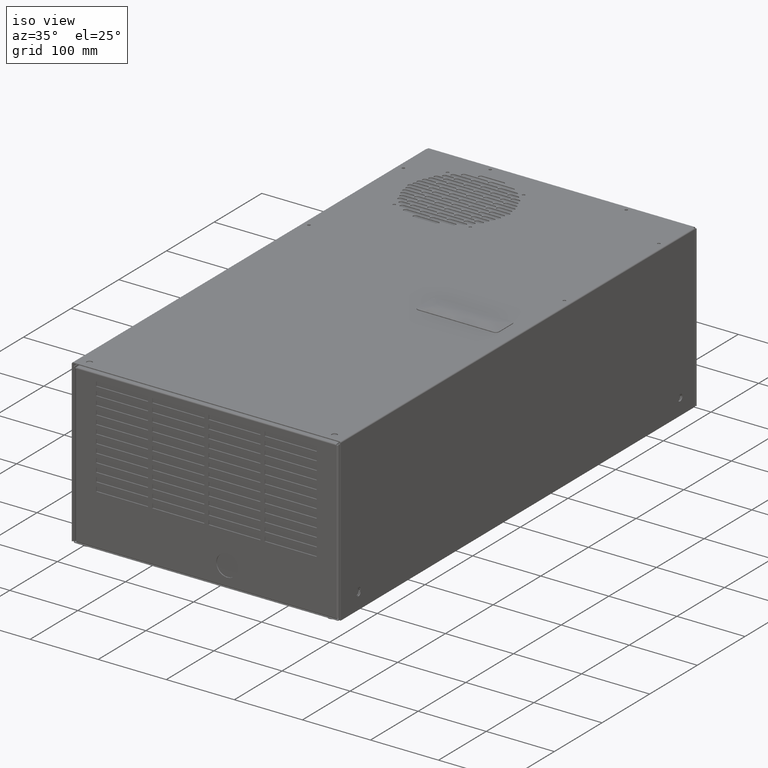
[diagram: clean part render]
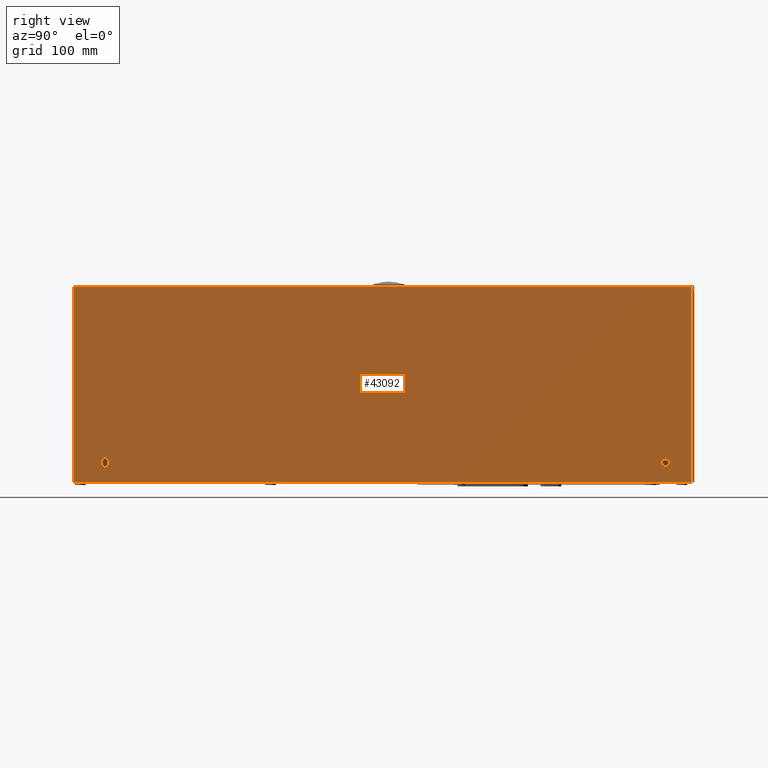
[diagram: tour spotlight — one face highlighted and labeled with its STEP entity id]
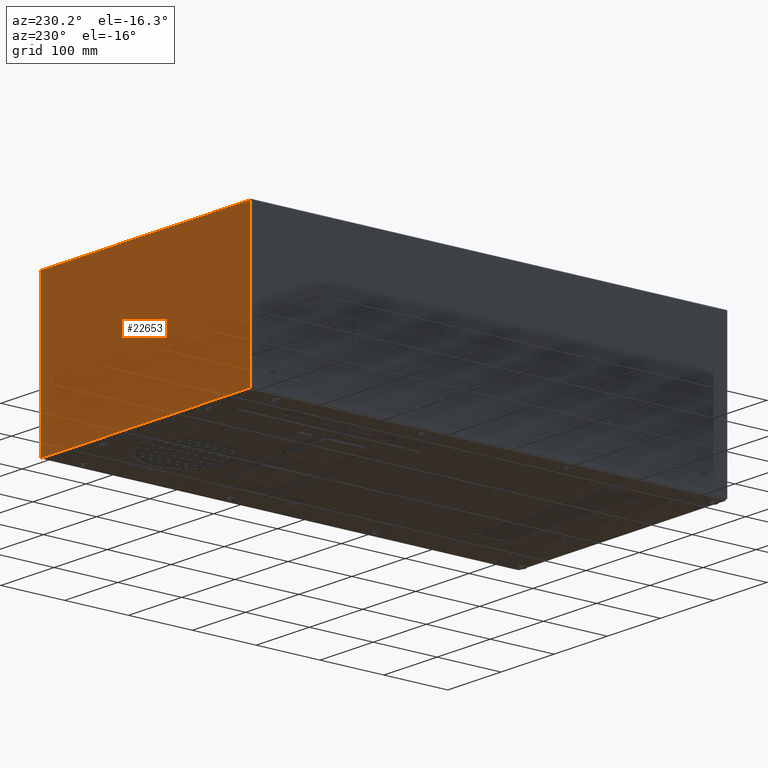
[diagram: tour spotlight — one face highlighted and labeled with its STEP entity id]
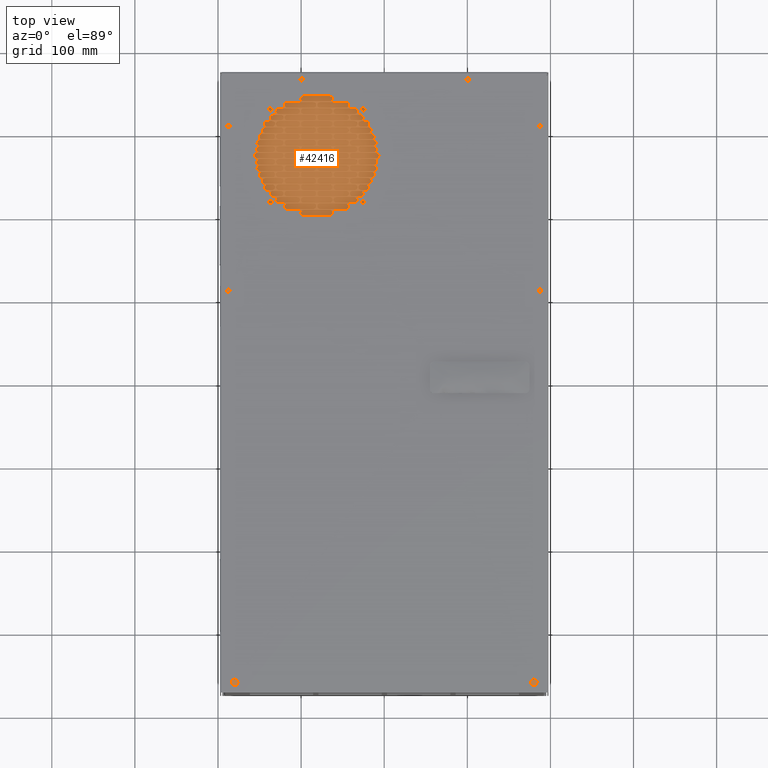
[diagram: tour spotlight — one face highlighted and labeled with its STEP entity id]
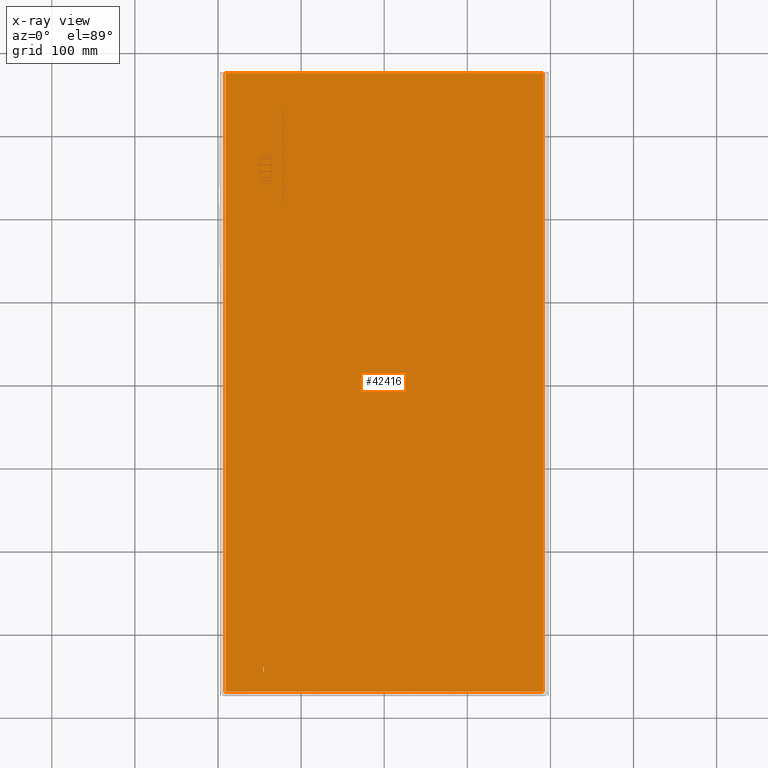
[diagram: x-ray of the same camera — body ghosted, this tour face saturated]
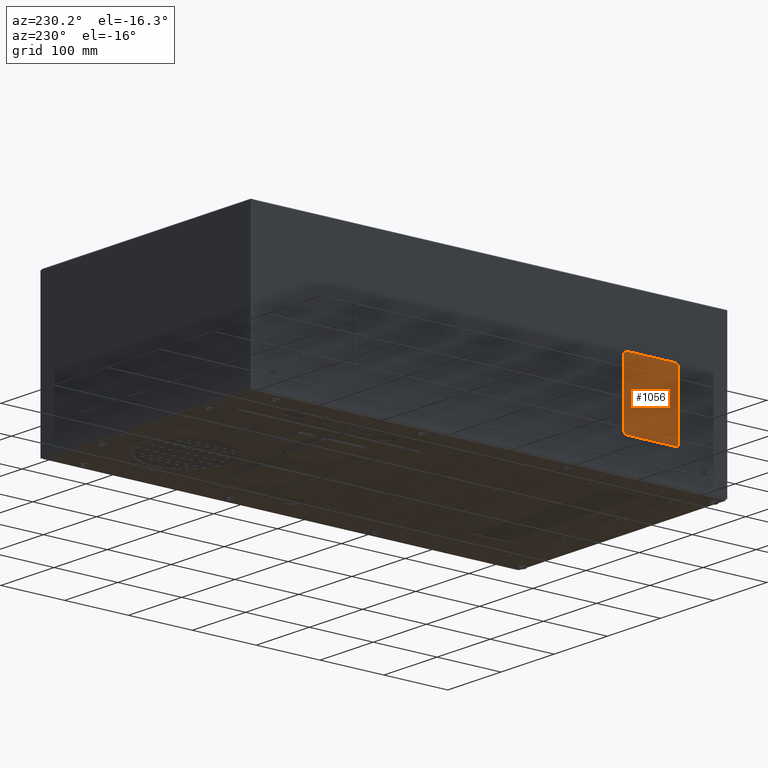
[diagram: tour spotlight — one face highlighted and labeled with its STEP entity id]
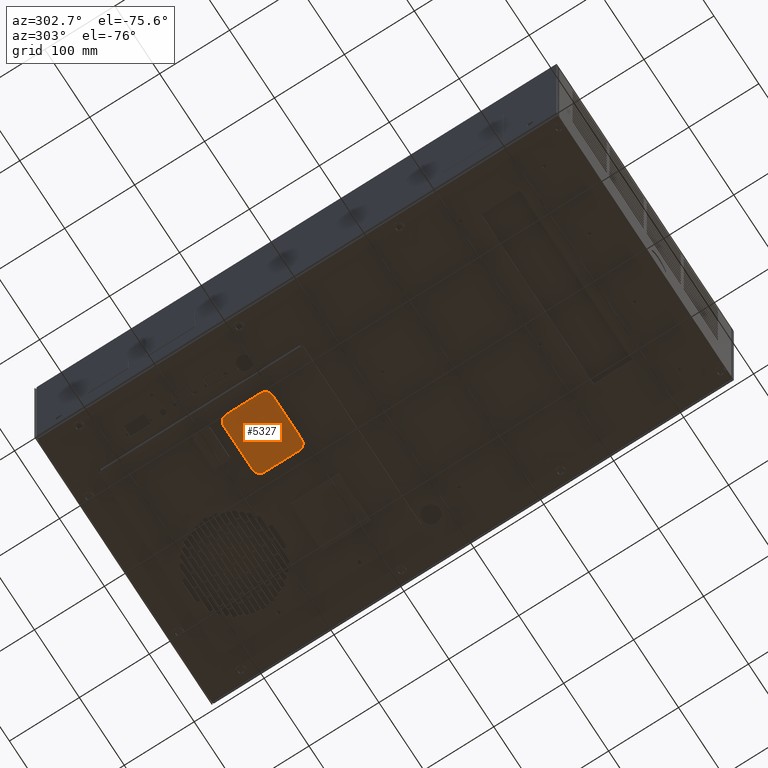
[diagram: tour spotlight — one face highlighted and labeled with its STEP entity id]
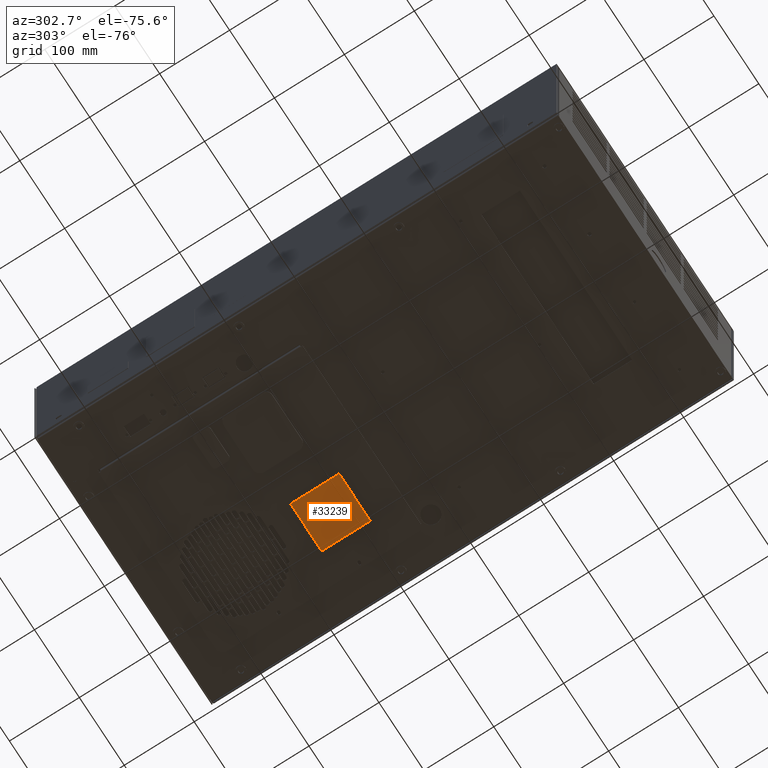
[diagram: tour spotlight — one face highlighted and labeled with its STEP entity id]
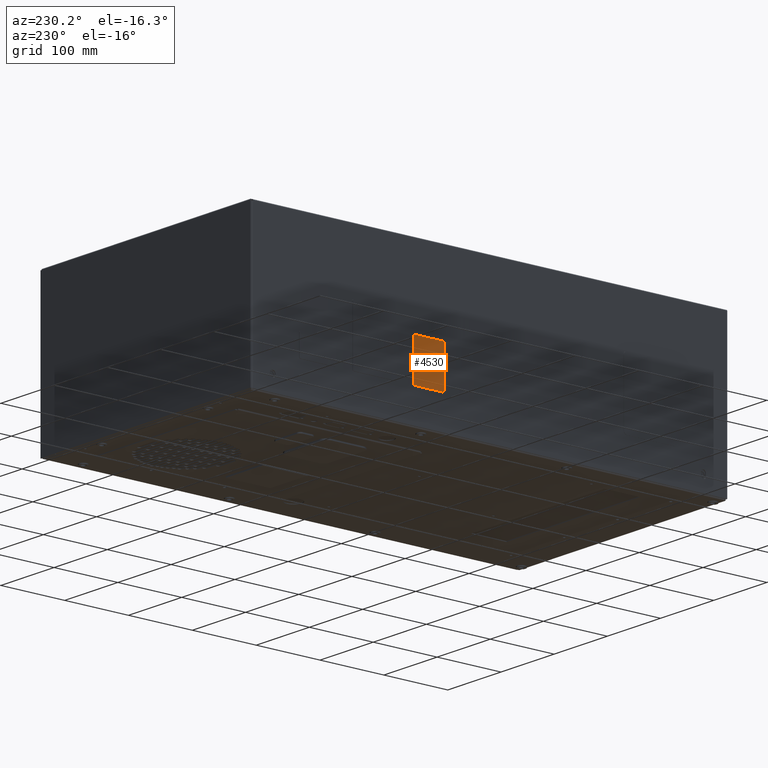
[diagram: tour spotlight — one face highlighted and labeled with its STEP entity id]
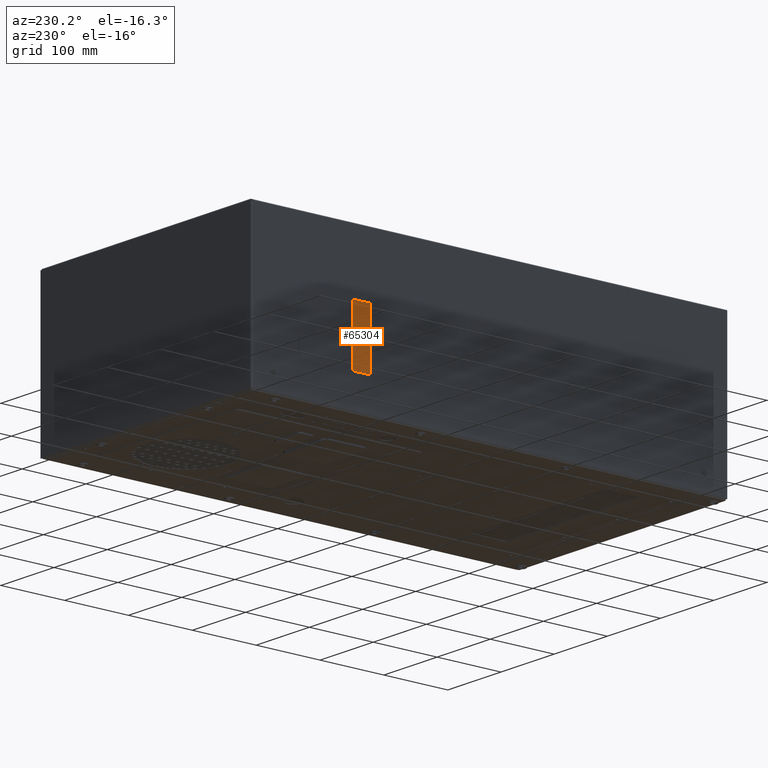
[diagram: tour spotlight — one face highlighted and labeled with its STEP entity id]
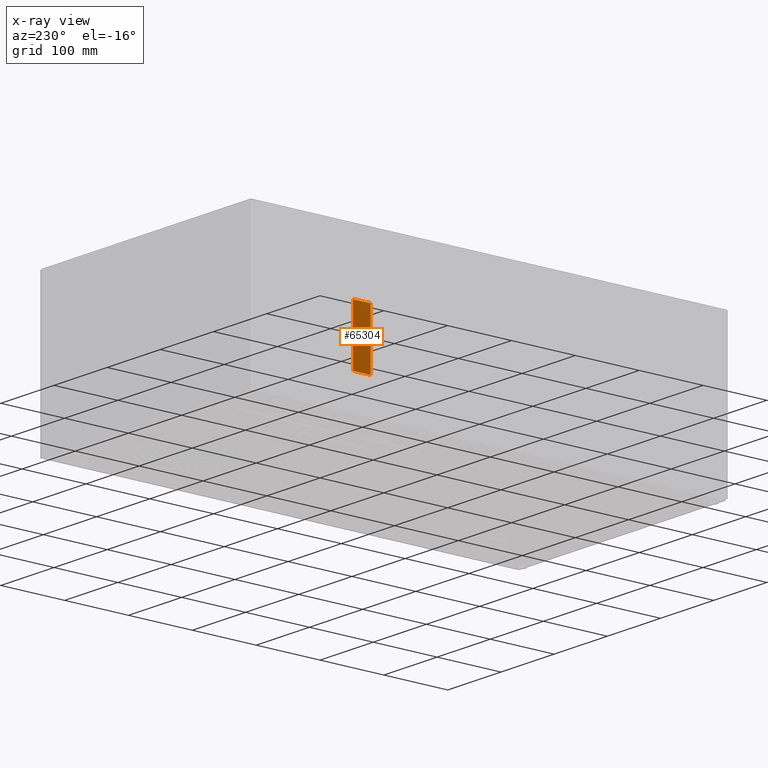
[diagram: x-ray of the same camera — body ghosted, this tour face saturated]
A machine part: a face-by-face anatomy tour. The part has 1943 B-rep faces; the first image is the clean iso view, then the 8 largest visible faces are spotlighted one at a time (largest first), each with its STEP entity span.

Face 1 — right view, entity #43092. In plain terms, the highlighted planar face has unit normal (-1, 0, -0).
Definition (entity closure, byte-faithful):
#1597 = VERTEX_POINT ( 'NONE', #36632 ) ;
#2814 = CARTESIAN_POINT ( 'NONE',  ( 7.775590551181102761, -13.37415485964175232, -3.621748818897834621 ) ) ;
#4029 = ORIENTED_EDGE ( 'NONE', *, *, #32549, .T. ) ;
#4426 = VECTOR ( 'NONE', #25299, 39.37007874015748143 ) ;
#6234 = PLANE ( 'NONE',  #25443 ) ;
#7026 = EDGE_LOOP ( 'NONE', ( #66239, #49072 ) ) ;
#9017 = VERTEX_POINT ( 'NONE', #23670 ) ;
#9450 = DIRECTION ( 'NONE',  ( 0.000000000000000000, -1.400947689058594811E-14, 1.000000000000000000 ) ) ;
#9546 = CARTESIAN_POINT ( 'NONE',  ( 7.775590551181102761, -13.37415485964175232, -3.777748818897838312 ) ) ;
#9908 = CARTESIAN_POINT ( 'NONE',  ( 7.775590551181102761, 14.62058530020065028, 4.624731496063189340 ) ) ;
#10306 = DIRECTION ( 'NONE',  ( -5.824884704224319422E-15, -1.164976940844863884E-14, 1.000000000000000000 ) ) ;
#11043 = CARTESIAN_POINT ( 'NONE',  ( 7.775590551181102761, 14.54373490649982159, 4.624731496063181346 ) ) ;
#11108 = CARTESIAN_POINT ( 'NONE',  ( 7.775590551181102761, 13.33869553642124117, -3.895347244094315098 ) ) ;
#11324 = DIRECTION ( 'NONE',  ( 3.522132179133150239E-15, 1.391066095212824273E-14, -1.000000000000000000 ) ) ;
#11753 = VERTEX_POINT ( 'NONE', #11108 ) ;
#12676 = CIRCLE ( 'NONE', #56945, 0.1560000000000001941 ) ;
#14084 = CARTESIAN_POINT ( 'NONE',  ( 7.775590551181102761, 13.33869553642124117, -3.707748818897464549 ) ) ;
#15644 = DIRECTION ( 'NONE',  ( 0.000000000000000000, 1.000000000000000000, 1.391066095212824273E-14 ) ) ;
#16147 = CIRCLE ( 'NONE', #33419, 0.1560000000000001941 ) ;
#16871 = VERTEX_POINT ( 'NONE', #37798 ) ;
#17612 = ORIENTED_EDGE ( 'NONE', *, *, #22109, .T. ) ;
#18664 = EDGE_CURVE ( 'NONE', #16871, #43604, #46100, .T. ) ;
#18814 = ORIENTED_EDGE ( 'NONE', *, *, #52625, .T. ) ;
#19229 = VECTOR ( 'NONE', #33981, 39.37007874015748143 ) ;
#20272 = DIRECTION ( 'NONE',  ( -1.000000000000000000, 0.000000000000000000, 0.000000000000000000 ) ) ;
#20791 = ORIENTED_EDGE ( 'NONE', *, *, #38910, .T. ) ;
#21551 = VERTEX_POINT ( 'NONE', #2814 ) ;
#21785 = FACE_BOUND ( 'NONE', #41237, .T. ) ;
#22109 = EDGE_CURVE ( 'NONE', #38797, #51019, #22876, .T. ) ;
#22876 = CIRCLE ( 'NONE', #50972, 0.1560000000000001941 ) ;
#23497 = LINE ( 'NONE', #48887, #19229 ) ;
#23670 = CARTESIAN_POINT ( 'NONE',  ( 7.775590551181102761, -13.06215485964175294, -3.621748818897831068 ) ) ;
#23710 = DIRECTION ( 'NONE',  ( -1.000000000000000000, 0.000000000000000000, 0.000000000000000000 ) ) ;
#24412 = EDGE_CURVE ( 'NONE', #11753, #42398, #46257, .T. ) ;
#24971 = LINE ( 'NONE', #45619, #4426 ) ;
#25299 = DIRECTION ( 'NONE',  ( 0.000000000000000000, -9.881593845769429733E-17, -1.000000000000000000 ) ) ;
#25443 = AXIS2_PLACEMENT_3D ( 'NONE', #46837, #56619, #41440 ) ;
#25517 = VERTEX_POINT ( 'NONE', #62198 ) ;
#27724 = ORIENTED_EDGE ( 'NONE', *, *, #18664, .F. ) ;
#27731 = DIRECTION ( 'NONE',  ( -1.000000000000000000, 0.000000000000000000, 0.000000000000000000 ) ) ;
#27786 = CARTESIAN_POINT ( 'NONE',  ( 7.775590551181102761, -13.21815485964177306, -3.621748818897834621 ) ) ;
#32549 = EDGE_CURVE ( 'NONE', #9017, #38797, #24971, .T. ) ;
#32559 = VERTEX_POINT ( 'NONE', #50681 ) ;
#33204 = AXIS2_PLACEMENT_3D ( 'NONE', #57619, #51226, #10306 ) ;
#33263 = CARTESIAN_POINT ( 'NONE',  ( 7.775590551181102761, 13.33869553642124117, -3.520150393700614000 ) ) ;
#33419 = AXIS2_PLACEMENT_3D ( 'NONE', #27786, #23710, #49757 ) ;
#33981 = DIRECTION ( 'NONE',  ( 0.000000000000000000, 1.000000000000000000, 1.391066095212824273E-14 ) ) ;
#34006 = DIRECTION ( 'NONE',  ( 0.000000000000000000, -1.391066095212824273E-14, 1.000000000000000000 ) ) ;
#34126 = DIRECTION ( 'NONE',  ( 0.000000000000000000, -1.400947689058594811E-14, 1.000000000000000000 ) ) ;
#35028 = DIRECTION ( 'NONE',  ( 0.000000000000000000, -1.391066095212824273E-14, 1.000000000000000000 ) ) ;
#36632 = CARTESIAN_POINT ( 'NONE',  ( 7.775590551181102761, 14.54373490649994061, -4.652748818897449290 ) ) ;
#37364 = LINE ( 'NONE', #46547, #63695 ) ;
#37798 = CARTESIAN_POINT ( 'NONE',  ( 7.775590551181102761, -14.69846982027179116, 4.624731496062771896 ) ) ;
#38263 = CARTESIAN_POINT ( 'NONE',  ( 7.775590551181102761, -13.06215485964175294, -3.777748818897830763 ) ) ;
#38797 = VERTEX_POINT ( 'NONE', #38263 ) ;
#38910 = EDGE_CURVE ( 'NONE', #1597, #43604, #65100, .T. ) ;
#39091 = ORIENTED_EDGE ( 'NONE', *, *, #66122, .T. ) ;
#39917 = ORIENTED_EDGE ( 'NONE', *, *, #56763, .T. ) ;
#41237 = EDGE_LOOP ( 'NONE', ( #56454, #39091, #57081, #4029, #17612 ) ) ;
#41440 = DIRECTION ( 'NONE',  ( -3.522132179133150239E-15, 0.000000000000000000, 1.000000000000000000 ) ) ;
#42211 = VECTOR ( 'NONE', #15644, 39.37007874015748143 ) ;
#42398 = VERTEX_POINT ( 'NONE', #33263 ) ;
#43092 = ADVANCED_FACE ( 'NONE', ( #57611, #21785, #57291 ), #6234, .F. ) ;
#43604 = VERTEX_POINT ( 'NONE', #11043 ) ;
#44531 = CARTESIAN_POINT ( 'NONE',  ( 7.775590551181102761, -13.37415485964175232, -3.621748818897834621 ) ) ;
#45210 = DIRECTION ( 'NONE',  ( -1.000000000000000000, 8.102799620570240686E-29, -5.824884704224321000E-15 ) ) ;
#45619 = CARTESIAN_POINT ( 'NONE',  ( 7.775590551181102761, -13.06215485964175294, -3.621748818897831068 ) ) ;
#46100 = LINE ( 'NONE', #9908, #42211 ) ;
#46257 = CIRCLE ( 'NONE', #62436, 0.1875984251968506045 ) ;
#46369 = EDGE_CURVE ( 'NONE', #42398, #11753, #62349, .T. ) ;
#46547 = CARTESIAN_POINT ( 'NONE',  ( 7.775590551181102761, -14.69846982027179116, 4.654731496062771257 ) ) ;
#46837 = CARTESIAN_POINT ( 'NONE',  ( 7.775590551181102761, -14.69846982027179116, 4.654731496062771257 ) ) ;
#47461 = EDGE_LOOP ( 'NONE', ( #20791, #27724, #39917, #18814 ) ) ;
#48320 = VECTOR ( 'NONE', #34006, 39.37007874015748143 ) ;
#48621 = VECTOR ( 'NONE', #35028, 39.37007874015748143 ) ;
#48887 = CARTESIAN_POINT ( 'NONE',  ( 7.775590551181102761, -14.69846982027167392, -4.652748818897850747 ) ) ;
#49072 = ORIENTED_EDGE ( 'NONE', *, *, #24412, .T. ) ;
#49757 = DIRECTION ( 'NONE',  ( 0.000000000000000000, -1.400947689058594811E-14, 1.000000000000000000 ) ) ;
#50601 = DIRECTION ( 'NONE',  ( -5.824884704224319422E-15, -1.164976940844863884E-14, 1.000000000000000000 ) ) ;
#50681 = CARTESIAN_POINT ( 'NONE',  ( 7.775590551181102761, -14.69846982027167392, -4.652748818897850747 ) ) ;
#50972 = AXIS2_PLACEMENT_3D ( 'NONE', #66556, #20272, #9450 ) ;
#51019 = VERTEX_POINT ( 'NONE', #9546 ) ;
#51226 = DIRECTION ( 'NONE',  ( -1.000000000000000000, 8.102799620570240686E-29, -5.824884704224321000E-15 ) ) ;
#52625 = EDGE_CURVE ( 'NONE', #32559, #1597, #23497, .T. ) ;
#54094 = CARTESIAN_POINT ( 'NONE',  ( 7.775590551181102761, -13.21815485964177306, -3.621748818897834621 ) ) ;
#56454 = ORIENTED_EDGE ( 'NONE', *, *, #56679, .T. ) ;
#56619 = DIRECTION ( 'NONE',  ( -1.000000000000000000, 4.899518657250190874E-29, -3.522132179133150239E-15 ) ) ;
#56679 = EDGE_CURVE ( 'NONE', #51019, #21551, #60728, .T. ) ;
#56763 = EDGE_CURVE ( 'NONE', #16871, #32559, #37364, .T. ) ;
#56945 = AXIS2_PLACEMENT_3D ( 'NONE', #54094, #27731, #34126 ) ;
#57081 = ORIENTED_EDGE ( 'NONE', *, *, #60969, .T. ) ;
#57291 = FACE_OUTER_BOUND ( 'NONE', #47461, .T. ) ;
#57611 = FACE_BOUND ( 'NONE', #7026, .T. ) ;
#57619 = CARTESIAN_POINT ( 'NONE',  ( 7.775590551181102761, 13.33869553642124117, -3.707748818897464549 ) ) ;
#60728 = LINE ( 'NONE', #44531, #48621 ) ;
#60969 = EDGE_CURVE ( 'NONE', #25517, #9017, #12676, .T. ) ;
#62198 = CARTESIAN_POINT ( 'NONE',  ( 7.775590551181102761, -13.21815485964177306, -3.465748818897834482 ) ) ;
#62349 = CIRCLE ( 'NONE', #33204, 0.1875984251968506045 ) ;
#62436 = AXIS2_PLACEMENT_3D ( 'NONE', #14084, #45210, #50601 ) ;
#63695 = VECTOR ( 'NONE', #11324, 39.37007874015748143 ) ;
#65100 = LINE ( 'NONE', #66420, #48320 ) ;
#66122 = EDGE_CURVE ( 'NONE', #21551, #25517, #16147, .T. ) ;
#66239 = ORIENTED_EDGE ( 'NONE', *, *, #46369, .T. ) ;
#66420 = CARTESIAN_POINT ( 'NONE',  ( 7.775590551181102761, 14.54373490649994061, -4.652748818897449290 ) ) ;
#66556 = CARTESIAN_POINT ( 'NONE',  ( 7.775590551181102761, -13.21815485964175352, -3.777748818897834315 ) ) ;

Face 2 — auxiliary view, entity #22653. In plain terms, the highlighted planar face has unit normal (0, 1, 0).
Definition (entity closure, byte-faithful):
#770 = DIRECTION ( 'NONE',  ( 1.000000000000000000, 0.000000000000000000, 0.000000000000000000 ) ) ;
#1527 = EDGE_CURVE ( 'NONE', #1621, #20589, #5858, .T. ) ;
#1603 = FACE_OUTER_BOUND ( 'NONE', #47315, .T. ) ;
#1621 = VERTEX_POINT ( 'NONE', #47440 ) ;
#1939 = PLANE ( 'NONE',  #13205 ) ;
#2025 = ORIENTED_EDGE ( 'NONE', *, *, #13927, .T. ) ;
#4133 = LINE ( 'NONE', #66622, #57236 ) ;
#5858 = LINE ( 'NONE', #11924, #6247 ) ;
#6247 = VECTOR ( 'NONE', #63286, 39.37007874015748143 ) ;
#9148 = VECTOR ( 'NONE', #58156, 39.37007874015748143 ) ;
#10281 = ORIENTED_EDGE ( 'NONE', *, *, #63197, .T. ) ;
#11547 = LINE ( 'NONE', #52151, #63926 ) ;
#11924 = CARTESIAN_POINT ( 'NONE',  ( -7.775590551181102761, 14.69838057579119983, 4.624731496063189340 ) ) ;
#11953 = VERTEX_POINT ( 'NONE', #35740 ) ;
#13135 = CARTESIAN_POINT ( 'NONE',  ( 7.775590551181102761, 14.69838057579132062, -4.652748818897449290 ) ) ;
#13205 = AXIS2_PLACEMENT_3D ( 'NONE', #54295, #28269, #17131 ) ;
#13927 = EDGE_CURVE ( 'NONE', #52441, #38232, #21662, .T. ) ;
#17131 = DIRECTION ( 'NONE',  ( 0.000000000000000000, 1.391066095212824273E-14, -1.000000000000000000 ) ) ;
#17862 = CARTESIAN_POINT ( 'NONE',  ( 7.775590551181102761, 14.69838057579132062, -4.604953543306898212 ) ) ;
#20589 = VERTEX_POINT ( 'NONE', #58117 ) ;
#20598 = VERTEX_POINT ( 'NONE', #13135 ) ;
#21119 = EDGE_CURVE ( 'NONE', #38232, #11953, #11547, .T. ) ;
#21662 = LINE ( 'NONE', #37206, #9148 ) ;
#22653 = ADVANCED_FACE ( 'NONE', ( #1603 ), #1939, .T. ) ;
#25778 = DIRECTION ( 'NONE',  ( 1.000000000000000000, 0.000000000000000000, 0.000000000000000000 ) ) ;
#28269 = DIRECTION ( 'NONE',  ( 0.000000000000000000, 1.000000000000000000, 1.391066095212824273E-14 ) ) ;
#28814 = ORIENTED_EDGE ( 'NONE', *, *, #48870, .T. ) ;
#30843 = CARTESIAN_POINT ( 'NONE',  ( -7.775590551181102761, 14.69838057579119983, 4.624731496063189340 ) ) ;
#32325 = ORIENTED_EDGE ( 'NONE', *, *, #21119, .T. ) ;
#33091 = DIRECTION ( 'NONE',  ( 0.000000000000000000, -1.391066095212824273E-14, 1.000000000000000000 ) ) ;
#35740 = CARTESIAN_POINT ( 'NONE',  ( -7.697795275590551434, 14.69838057579119983, 4.624731496063189340 ) ) ;
#35822 = ORIENTED_EDGE ( 'NONE', *, *, #1527, .T. ) ;
#37032 = EDGE_CURVE ( 'NONE', #20598, #20589, #37501, .T. ) ;
#37206 = CARTESIAN_POINT ( 'NONE',  ( -7.775590551181102761, 14.69838057579132062, -4.604953543306898212 ) ) ;
#37501 = LINE ( 'NONE', #17862, #40550 ) ;
#38232 = VERTEX_POINT ( 'NONE', #56982 ) ;
#40550 = VECTOR ( 'NONE', #33091, 39.37007874015748143 ) ;
#43863 = VECTOR ( 'NONE', #25778, 39.37007874015748143 ) ;
#45392 = DIRECTION ( 'NONE',  ( -1.000000000000000000, 0.000000000000000000, 0.000000000000000000 ) ) ;
#46430 = CARTESIAN_POINT ( 'NONE',  ( -7.775590551181102761, 14.69838057579132062, -4.652748818897449290 ) ) ;
#47315 = EDGE_LOOP ( 'NONE', ( #64824, #10281, #2025, #32325, #28814, #35822 ) ) ;
#47440 = CARTESIAN_POINT ( 'NONE',  ( 7.697795275590551434, 14.69838057579119983, 4.624731496063189340 ) ) ;
#48870 = EDGE_CURVE ( 'NONE', #11953, #1621, #56536, .T. ) ;
#52151 = CARTESIAN_POINT ( 'NONE',  ( -7.775590551181102761, 14.69838057579119983, 4.624731496063189340 ) ) ;
#52441 = VERTEX_POINT ( 'NONE', #46430 ) ;
#54295 = CARTESIAN_POINT ( 'NONE',  ( -7.775590551181102761, 14.69838057579132062, -4.604953543306898212 ) ) ;
#56536 = LINE ( 'NONE', #30843, #43863 ) ;
#56982 = CARTESIAN_POINT ( 'NONE',  ( -7.775590551181102761, 14.69838057579119983, 4.624731496063189340 ) ) ;
#57236 = VECTOR ( 'NONE', #45392, 39.37007874015748143 ) ;
#58117 = CARTESIAN_POINT ( 'NONE',  ( 7.775590551181102761, 14.69838057579119983, 4.624731496063189340 ) ) ;
#58156 = DIRECTION ( 'NONE',  ( 0.000000000000000000, -1.391066095212824273E-14, 1.000000000000000000 ) ) ;
#63197 = EDGE_CURVE ( 'NONE', #20598, #52441, #4133, .T. ) ;
#63286 = DIRECTION ( 'NONE',  ( 1.000000000000000000, 0.000000000000000000, 0.000000000000000000 ) ) ;
#63926 = VECTOR ( 'NONE', #770, 39.37007874015748143 ) ;
#64824 = ORIENTED_EDGE ( 'NONE', *, *, #37032, .F. ) ;
#66622 = CARTESIAN_POINT ( 'NONE',  ( 7.843183278138661230, 14.69838057579132062, -4.652748818897449290 ) ) ;

Face 3 — top view, entity #42416. An x-ray twin of the same camera follows (body ghosted, this face saturated) — the face is partly hidden behind the body. In plain terms, the highlighted planar face has unit normal (0, 0, -1).
Definition (entity closure, byte-faithful):
#433 = CARTESIAN_POINT ( 'NONE',  ( -7.514481472171063103, 32.19045589093358473, 4.438136220472795657 ) ) ;
#1529 = CARTESIAN_POINT ( 'NONE',  ( -7.514481472171063103, 32.19045589093358473, 4.438136220472795657 ) ) ;
#2667 = DIRECTION ( 'NONE',  ( 0.000000000000000000, -1.000000000000000000, -1.391066095212824273E-14 ) ) ;
#2686 = VERTEX_POINT ( 'NONE', #30889 ) ;
#3059 = CARTESIAN_POINT ( 'NONE',  ( 7.524768921529724430, -14.65058057579143913, 4.438136220472141957 ) ) ;
#4855 = VECTOR ( 'NONE', #20881, 39.37007874015748143 ) ;
#5590 = CARTESIAN_POINT ( 'NONE',  ( -7.514481472171063103, -13.47945407224029424, 4.438136220472165050 ) ) ;
#5635 = VERTEX_POINT ( 'NONE', #3059 ) ;
#6276 = CARTESIAN_POINT ( 'NONE',  ( -5.696299212598425754, -13.72748556830328859, 4.438136220472157945 ) ) ;
#6690 = CARTESIAN_POINT ( 'NONE',  ( 7.527930071876713036, -14.65058057579143913, 4.438136220472141957 ) ) ;
#7221 = FACE_BOUND ( 'NONE', #18690, .T. ) ;
#7343 = CARTESIAN_POINT ( 'NONE',  ( 7.524768921529724430, 14.65058530020064964, 4.438136220472558513 ) ) ;
#8154 = CARTESIAN_POINT ( 'NONE',  ( 7.524768921529724430, 32.19045589093358473, 4.438136220472795657 ) ) ;
#8557 = DIRECTION ( 'NONE',  ( 0.000000000000000000, -1.000000000000000000, -1.391066095212824273E-14 ) ) ;
#8771 = CARTESIAN_POINT ( 'NONE',  ( -5.727795275590551682, -13.72748556830328859, 4.438136220472157945 ) ) ;
#8926 = DIRECTION ( 'NONE',  ( -1.000000000000000000, 0.000000000000000000, 0.000000000000000000 ) ) ;
#9819 = VECTOR ( 'NONE', #55325, 39.37007874015748143 ) ;
#9974 = LINE ( 'NONE', #5590, #12501 ) ;
#11524 = LINE ( 'NONE', #433, #36412 ) ;
#12501 = VECTOR ( 'NONE', #26197, 39.37007874015748143 ) ;
#18500 = VERTEX_POINT ( 'NONE', #39347 ) ;
#18690 = EDGE_LOOP ( 'NONE', ( #54610, #47954, #41074, #29846 ) ) ;
#19158 = EDGE_CURVE ( 'NONE', #45440, #63545, #58931, .T. ) ;
#20881 = DIRECTION ( 'NONE',  ( 0.000000000000000000, -1.000000000000000000, -1.391066095212824273E-14 ) ) ;
#22117 = DIRECTION ( 'NONE',  ( -1.000000000000000000, 0.000000000000000000, 0.000000000000000000 ) ) ;
#25601 = EDGE_CURVE ( 'NONE', #28998, #63545, #38200, .T. ) ;
#26197 = DIRECTION ( 'NONE',  ( -1.000000000000000000, 0.000000000000000000, 0.000000000000000000 ) ) ;
#28998 = VERTEX_POINT ( 'NONE', #8771 ) ;
#29846 = ORIENTED_EDGE ( 'NONE', *, *, #25601, .F. ) ;
#30422 = VERTEX_POINT ( 'NONE', #7343 ) ;
#30427 = EDGE_CURVE ( 'NONE', #5635, #18500, #43550, .T. ) ;
#30889 = CARTESIAN_POINT ( 'NONE',  ( -5.727795275590551682, -13.47945407224029424, 4.438136220472165050 ) ) ;
#31424 = VECTOR ( 'NONE', #8557, 39.37007874015748143 ) ;
#32327 = EDGE_LOOP ( 'NONE', ( #64604, #37892, #56267, #40525 ) ) ;
#32860 = EDGE_CURVE ( 'NONE', #36131, #30422, #49937, .T. ) ;
#33446 = CARTESIAN_POINT ( 'NONE',  ( -7.514481472171063103, 14.65058530020064964, 4.438136220472558513 ) ) ;
#34393 = VECTOR ( 'NONE', #40618, 39.37007874015748143 ) ;
#34759 = EDGE_CURVE ( 'NONE', #30422, #5635, #54471, .T. ) ;
#36131 = VERTEX_POINT ( 'NONE', #33446 ) ;
#36412 = VECTOR ( 'NONE', #2667, 39.37007874015748143 ) ;
#37631 = VECTOR ( 'NONE', #8926, 39.37007874015748143 ) ;
#37892 = ORIENTED_EDGE ( 'NONE', *, *, #44492, .T. ) ;
#38200 = LINE ( 'NONE', #42295, #60366 ) ;
#39347 = CARTESIAN_POINT ( 'NONE',  ( -7.514481472171063103, -14.65058057579143913, 4.438136220472141957 ) ) ;
#39557 = CARTESIAN_POINT ( 'NONE',  ( -5.696299212598425754, -13.47945407224029424, 4.438136220472165050 ) ) ;
#40525 = ORIENTED_EDGE ( 'NONE', *, *, #34759, .F. ) ;
#40618 = DIRECTION ( 'NONE',  ( 0.000000000000000000, -1.000000000000000000, -1.391066095212824273E-14 ) ) ;
#41074 = ORIENTED_EDGE ( 'NONE', *, *, #19158, .T. ) ;
#42244 = EDGE_CURVE ( 'NONE', #2686, #28998, #61441, .T. ) ;
#42295 = CARTESIAN_POINT ( 'NONE',  ( -7.514481472171063103, -13.72748556830328859, 4.438136220472157945 ) ) ;
#42416 = ADVANCED_FACE ( 'NONE', ( #7221, #43748 ), #48158, .F. ) ;
#43122 = EDGE_CURVE ( 'NONE', #45440, #2686, #9974, .T. ) ;
#43550 = LINE ( 'NONE', #6690, #37631 ) ;
#43748 = FACE_OUTER_BOUND ( 'NONE', #32327, .T. ) ;
#44492 = EDGE_CURVE ( 'NONE', #36131, #18500, #11524, .T. ) ;
#45440 = VERTEX_POINT ( 'NONE', #39557 ) ;
#47954 = ORIENTED_EDGE ( 'NONE', *, *, #43122, .F. ) ;
#48158 = PLANE ( 'NONE',  #65335 ) ;
#49937 = LINE ( 'NONE', #64790, #9819 ) ;
#52745 = DIRECTION ( 'NONE',  ( 1.000000000000000000, 0.000000000000000000, 0.000000000000000000 ) ) ;
#54471 = LINE ( 'NONE', #8154, #34393 ) ;
#54610 = ORIENTED_EDGE ( 'NONE', *, *, #42244, .F. ) ;
#55325 = DIRECTION ( 'NONE',  ( 1.000000000000000000, 0.000000000000000000, 0.000000000000000000 ) ) ;
#56267 = ORIENTED_EDGE ( 'NONE', *, *, #30427, .F. ) ;
#58931 = LINE ( 'NONE', #64328, #31424 ) ;
#59605 = DIRECTION ( 'NONE',  ( 0.000000000000000000, 1.391066095212824273E-14, -1.000000000000000000 ) ) ;
#60366 = VECTOR ( 'NONE', #52745, 39.37007874015748143 ) ;
#61441 = LINE ( 'NONE', #65851, #4855 ) ;
#63545 = VERTEX_POINT ( 'NONE', #6276 ) ;
#64328 = CARTESIAN_POINT ( 'NONE',  ( -5.696299212598425754, 32.19045589093358473, 4.438136220472795657 ) ) ;
#64604 = ORIENTED_EDGE ( 'NONE', *, *, #32860, .F. ) ;
#64790 = CARTESIAN_POINT ( 'NONE',  ( -7.514481472171063103, 14.65058530020064964, 4.438136220472558513 ) ) ;
#65335 = AXIS2_PLACEMENT_3D ( 'NONE', #1529, #59605, #22117 ) ;
#65851 = CARTESIAN_POINT ( 'NONE',  ( -5.727795275590551682, 32.19045589093358473, 4.438136220472795657 ) ) ;

Face 4 — auxiliary view, entity #1056. In plain terms, the highlighted planar face has unit normal (1, 0, 0).
Definition (entity closure, byte-faithful):
#917 = DIRECTION ( 'NONE',  ( 0.000000000000000000, -1.665334536937735757E-14, 1.000000000000000000 ) ) ;
#1056 = ADVANCED_FACE ( 'NONE', ( #59725 ), #13411, .F. ) ;
#1828 = VERTEX_POINT ( 'NONE', #42299 ) ;
#3297 = DIRECTION ( 'NONE',  ( 0.000000000000000000, 1.000000000000000000, 0.000000000000000000 ) ) ;
#3333 = EDGE_CURVE ( 'NONE', #37674, #31422, #24128, .T. ) ;
#5711 = CIRCLE ( 'NONE', #40264, 0.1968503937007873017 ) ;
#6275 = EDGE_CURVE ( 'NONE', #31422, #32992, #55248, .T. ) ;
#11294 = AXIS2_PLACEMENT_3D ( 'NONE', #29033, #34442, #18877 ) ;
#11521 = EDGE_CURVE ( 'NONE', #1828, #37674, #5711, .T. ) ;
#12226 = DIRECTION ( 'NONE',  ( 0.000000000000000000, 1.000000000000000000, 1.391066095212824273E-14 ) ) ;
#12755 = EDGE_CURVE ( 'NONE', #32992, #60009, #20357, .T. ) ;
#13411 = PLANE ( 'NONE',  #21445 ) ;
#14660 = VECTOR ( 'NONE', #12226, 39.37007874015748143 ) ;
#15301 = ORIENTED_EDGE ( 'NONE', *, *, #3333, .T. ) ;
#16406 = AXIS2_PLACEMENT_3D ( 'NONE', #47223, #27576, #917 ) ;
#16580 = CARTESIAN_POINT ( 'NONE',  ( -7.783464566929290562, -11.50161942657088687, 1.481109448818685337 ) ) ;
#17226 = CARTESIAN_POINT ( 'NONE',  ( -7.783464566929290562, -8.312643048618129527, 1.284259055117942694 ) ) ;
#18877 = DIRECTION ( 'NONE',  ( 0.000000000000000000, -1.110223024625157172E-14, 1.000000000000000000 ) ) ;
#20357 = LINE ( 'NONE', #30164, #24169 ) ;
#20378 = ORIENTED_EDGE ( 'NONE', *, *, #6275, .T. ) ;
#20837 = CIRCLE ( 'NONE', #29451, 0.1968503937007875793 ) ;
#21445 = AXIS2_PLACEMENT_3D ( 'NONE', #34027, #49605, #3297 ) ;
#21840 = CARTESIAN_POINT ( 'NONE',  ( -7.783464566929290562, -11.50161942657082648, -2.652748818897850747 ) ) ;
#22682 = CARTESIAN_POINT ( 'NONE',  ( -7.783464566929290562, -11.69846982027167392, 1.284259055117895398 ) ) ;
#23123 = CARTESIAN_POINT ( 'NONE',  ( -7.783464566929290562, -8.509493442318859735, -2.652748818897807670 ) ) ;
#24128 = LINE ( 'NONE', #28862, #38818 ) ;
#24169 = VECTOR ( 'NONE', #35907, 39.37007874015748143 ) ;
#26397 = CIRCLE ( 'NONE', #11294, 0.1968503937007873017 ) ;
#26471 = DIRECTION ( 'NONE',  ( 0.000000000000000000, 1.110223024625155594E-14, -1.000000000000000000 ) ) ;
#27576 = DIRECTION ( 'NONE',  ( -1.000000000000000000, 0.000000000000000000, 0.000000000000000000 ) ) ;
#28862 = CARTESIAN_POINT ( 'NONE',  ( -7.783464566929290562, -8.312643048618070907, -2.455898425197015733 ) ) ;
#29033 = CARTESIAN_POINT ( 'NONE',  ( -7.783464566929290562, -11.50161942657088687, 1.284259055117897619 ) ) ;
#29451 = AXIS2_PLACEMENT_3D ( 'NONE', #42382, #47781, #26471 ) ;
#30164 = CARTESIAN_POINT ( 'NONE',  ( -7.783464566929290562, -11.50161942657082648, -2.652748818897850747 ) ) ;
#31422 = VERTEX_POINT ( 'NONE', #36783 ) ;
#31791 = ORIENTED_EDGE ( 'NONE', *, *, #34149, .T. ) ;
#32489 = CARTESIAN_POINT ( 'NONE',  ( -7.783464566929290562, -8.509493442318918355, 1.284259055117938919 ) ) ;
#32992 = VERTEX_POINT ( 'NONE', #23123 ) ;
#33293 = CARTESIAN_POINT ( 'NONE',  ( -7.783464566929290562, -11.69846982027161530, -2.455898425197067247 ) ) ;
#33520 = LINE ( 'NONE', #58853, #14660 ) ;
#33719 = ORIENTED_EDGE ( 'NONE', *, *, #11521, .T. ) ;
#34027 = CARTESIAN_POINT ( 'NONE',  ( -7.783464566929290562, -11.50161942657082648, -2.455898425197063251 ) ) ;
#34149 = EDGE_CURVE ( 'NONE', #51609, #49981, #63721, .T. ) ;
#34442 = DIRECTION ( 'NONE',  ( -1.000000000000000000, 0.000000000000000000, 0.000000000000000000 ) ) ;
#34541 = EDGE_CURVE ( 'NONE', #60009, #51609, #20837, .T. ) ;
#34771 = VECTOR ( 'NONE', #49510, 39.37007874015748143 ) ;
#35907 = DIRECTION ( 'NONE',  ( 0.000000000000000000, -1.000000000000000000, -1.391066095212824273E-14 ) ) ;
#36256 = EDGE_CURVE ( 'NONE', #49981, #62070, #26397, .T. ) ;
#36783 = CARTESIAN_POINT ( 'NONE',  ( -7.783464566929290562, -8.312643048618070907, -2.455898425197015733 ) ) ;
#36878 = EDGE_LOOP ( 'NONE', ( #51641, #31791, #52601, #63011, #33719, #15301, #20378, #41866 ) ) ;
#37674 = VERTEX_POINT ( 'NONE', #17226 ) ;
#38818 = VECTOR ( 'NONE', #49506, 39.37007874015748143 ) ;
#40264 = AXIS2_PLACEMENT_3D ( 'NONE', #32489, #59488, #42979 ) ;
#41866 = ORIENTED_EDGE ( 'NONE', *, *, #12755, .T. ) ;
#42299 = CARTESIAN_POINT ( 'NONE',  ( -7.783464566929290562, -8.509493442318918355, 1.481109448818726415 ) ) ;
#42382 = CARTESIAN_POINT ( 'NONE',  ( -7.783464566929290562, -11.50161942657082648, -2.455898425197063251 ) ) ;
#42979 = DIRECTION ( 'NONE',  ( 0.000000000000000000, -1.665334536937735757E-14, 1.000000000000000000 ) ) ;
#46907 = CARTESIAN_POINT ( 'NONE',  ( -7.783464566929290562, -11.69846982027161530, -2.455898425197067247 ) ) ;
#47223 = CARTESIAN_POINT ( 'NONE',  ( -7.783464566929290562, -8.509493442318859735, -2.455898425197019730 ) ) ;
#47781 = DIRECTION ( 'NONE',  ( -1.000000000000000000, 0.000000000000000000, 0.000000000000000000 ) ) ;
#49506 = DIRECTION ( 'NONE',  ( 0.000000000000000000, 1.391066095212824273E-14, -1.000000000000000000 ) ) ;
#49510 = DIRECTION ( 'NONE',  ( 0.000000000000000000, -1.391066095212824273E-14, 1.000000000000000000 ) ) ;
#49605 = DIRECTION ( 'NONE',  ( 1.000000000000000000, 0.000000000000000000, 0.000000000000000000 ) ) ;
#49981 = VERTEX_POINT ( 'NONE', #22682 ) ;
#51609 = VERTEX_POINT ( 'NONE', #46907 ) ;
#51641 = ORIENTED_EDGE ( 'NONE', *, *, #34541, .T. ) ;
#52601 = ORIENTED_EDGE ( 'NONE', *, *, #36256, .T. ) ;
#55248 = CIRCLE ( 'NONE', #16406, 0.1968503937007873017 ) ;
#58504 = EDGE_CURVE ( 'NONE', #62070, #1828, #33520, .T. ) ;
#58853 = CARTESIAN_POINT ( 'NONE',  ( -7.783464566929290562, -11.50161942657088687, 1.481109448818685337 ) ) ;
#59488 = DIRECTION ( 'NONE',  ( -1.000000000000000000, 0.000000000000000000, 0.000000000000000000 ) ) ;
#59725 = FACE_OUTER_BOUND ( 'NONE', #36878, .T. ) ;
#60009 = VERTEX_POINT ( 'NONE', #21840 ) ;
#62070 = VERTEX_POINT ( 'NONE', #16580 ) ;
#63011 = ORIENTED_EDGE ( 'NONE', *, *, #58504, .T. ) ;
#63721 = LINE ( 'NONE', #33293, #34771 ) ;

Face 5 — auxiliary view, entity #5327. In plain terms, the highlighted planar face has unit normal (0, -0, 1).
Definition (entity closure, byte-faithful):
#544 = CARTESIAN_POINT ( 'NONE',  ( -0.4921259842520078753, 6.430664040358248457, -4.828584103988858622 ) ) ;
#3005 = VECTOR ( 'NONE', #29276, 39.37007874015748143 ) ;
#4310 = CARTESIAN_POINT ( 'NONE',  ( -0.8858267716535825897, 4.068459315948802946, -4.828584103988897702 ) ) ;
#4893 = CARTESIAN_POINT ( 'NONE',  ( -0.8858267716535825897, 4.462160103350377938, -4.828584103988889709 ) ) ;
#5132 = CIRCLE ( 'NONE', #42931, 0.3937007874015748254 ) ;
#5327 = ADVANCED_FACE ( 'NONE', ( #26506 ), #51205, .F. ) ;
#5555 = DIRECTION ( 'NONE',  ( 0.000000000000000000, 1.391066095212824115E-14, -1.000000000000000000 ) ) ;
#6692 = DIRECTION ( 'NONE',  ( 0.000000000000000000, -1.000000000000000000, -1.391066095212824273E-14 ) ) ;
#7309 = CARTESIAN_POINT ( 'NONE',  ( -0.8858267716535825897, 6.430664040358248457, -4.828584103988858622 ) ) ;
#7476 = ORIENTED_EDGE ( 'NONE', *, *, #11187, .T. ) ;
#7498 = DIRECTION ( 'NONE',  ( 1.000000000000000000, 0.000000000000000000, 0.000000000000000000 ) ) ;
#7760 = EDGE_LOOP ( 'NONE', ( #64444, #65076, #47597, #63681, #7476, #14296, #64157, #32811 ) ) ;
#8647 = CARTESIAN_POINT ( 'NONE',  ( -3.838582677165354617, 4.462160103350377938, -4.828584103988889709 ) ) ;
#8918 = CIRCLE ( 'NONE', #33728, 0.3937007874015746034 ) ;
#10932 = CARTESIAN_POINT ( 'NONE',  ( -3.444881889763779625, 4.462160103350377938, -4.828584103988889709 ) ) ;
#11187 = EDGE_CURVE ( 'NONE', #62054, #37164, #8918, .T. ) ;
#11509 = AXIS2_PLACEMENT_3D ( 'NONE', #10932, #5555, #25153 ) ;
#12847 = EDGE_CURVE ( 'NONE', #59750, #52139, #55842, .T. ) ;
#14296 = ORIENTED_EDGE ( 'NONE', *, *, #29612, .T. ) ;
#15276 = CARTESIAN_POINT ( 'NONE',  ( -0.8858267716535825897, 4.068459315948802946, -4.828584103988897702 ) ) ;
#15660 = CARTESIAN_POINT ( 'NONE',  ( -0.8858267716535825897, 6.824364827759823449, -4.828584103988858622 ) ) ;
#16998 = AXIS2_PLACEMENT_3D ( 'NONE', #4893, #61678, #66073 ) ;
#17132 = DIRECTION ( 'NONE',  ( 0.000000000000000000, 1.391066095212824115E-14, -1.000000000000000000 ) ) ;
#17696 = VECTOR ( 'NONE', #66638, 39.37007874015748143 ) ;
#18339 = VERTEX_POINT ( 'NONE', #544 ) ;
#19949 = DIRECTION ( 'NONE',  ( 0.000000000000000000, 1.391066095212824115E-14, -1.000000000000000000 ) ) ;
#20144 = EDGE_CURVE ( 'NONE', #43898, #59750, #22875, .T. ) ;
#21567 = VECTOR ( 'NONE', #6692, 39.37007874015748143 ) ;
#22875 = CIRCLE ( 'NONE', #64925, 0.3937007874015748254 ) ;
#25153 = DIRECTION ( 'NONE',  ( -1.000000000000000000, 0.000000000000000000, 0.000000000000000000 ) ) ;
#25963 = EDGE_CURVE ( 'NONE', #18339, #43898, #33040, .T. ) ;
#26201 = VERTEX_POINT ( 'NONE', #46560 ) ;
#26506 = FACE_OUTER_BOUND ( 'NONE', #7760, .T. ) ;
#26892 = DIRECTION ( 'NONE',  ( -1.000000000000000000, 0.000000000000000000, 0.000000000000000000 ) ) ;
#28360 = VERTEX_POINT ( 'NONE', #15660 ) ;
#29276 = DIRECTION ( 'NONE',  ( 0.000000000000000000, 1.000000000000000000, 1.391066095212824273E-14 ) ) ;
#29612 = EDGE_CURVE ( 'NONE', #37164, #28360, #63944, .T. ) ;
#32811 = ORIENTED_EDGE ( 'NONE', *, *, #25963, .T. ) ;
#33040 = LINE ( 'NONE', #52664, #21567 ) ;
#33728 = AXIS2_PLACEMENT_3D ( 'NONE', #52572, #63717, #26892 ) ;
#37164 = VERTEX_POINT ( 'NONE', #42116 ) ;
#41028 = EDGE_CURVE ( 'NONE', #26201, #62054, #54970, .T. ) ;
#42116 = CARTESIAN_POINT ( 'NONE',  ( -3.444881889763779625, 6.824364827759823449, -4.828584103988858622 ) ) ;
#42512 = DIRECTION ( 'NONE',  ( 1.000000000000000000, 0.000000000000000000, 0.000000000000000000 ) ) ;
#42931 = AXIS2_PLACEMENT_3D ( 'NONE', #7309, #17132, #42512 ) ;
#43105 = CARTESIAN_POINT ( 'NONE',  ( -3.444881889763779625, 4.068459315948802946, -4.828584103988897702 ) ) ;
#43898 = VERTEX_POINT ( 'NONE', #51535 ) ;
#46157 = EDGE_CURVE ( 'NONE', #28360, #18339, #5132, .T. ) ;
#46560 = CARTESIAN_POINT ( 'NONE',  ( -3.838582677165354617, 4.462160103350377938, -4.828584103988889709 ) ) ;
#47597 = ORIENTED_EDGE ( 'NONE', *, *, #53612, .T. ) ;
#49739 = DIRECTION ( 'NONE',  ( 1.000000000000000000, 0.000000000000000000, 0.000000000000000000 ) ) ;
#51205 = PLANE ( 'NONE',  #16998 ) ;
#51535 = CARTESIAN_POINT ( 'NONE',  ( -0.4921259842520078753, 4.462160103350377938, -4.828584103988889709 ) ) ;
#52139 = VERTEX_POINT ( 'NONE', #43105 ) ;
#52572 = CARTESIAN_POINT ( 'NONE',  ( -3.444881889763779625, 6.430664040358248457, -4.828584103988858622 ) ) ;
#52664 = CARTESIAN_POINT ( 'NONE',  ( -0.4921259842520078753, 4.462160103350377938, -4.828584103988889709 ) ) ;
#53612 = EDGE_CURVE ( 'NONE', #52139, #26201, #60064, .T. ) ;
#53810 = CARTESIAN_POINT ( 'NONE',  ( -0.8858267716535825897, 6.824364827759823449, -4.828584103988858622 ) ) ;
#54970 = LINE ( 'NONE', #8647, #3005 ) ;
#55458 = CARTESIAN_POINT ( 'NONE',  ( -0.8858267716535825897, 4.462160103350377938, -4.828584103988889709 ) ) ;
#55842 = LINE ( 'NONE', #15276, #17696 ) ;
#57130 = VECTOR ( 'NONE', #7498, 39.37007874015748143 ) ;
#57491 = CARTESIAN_POINT ( 'NONE',  ( -3.838582677165354617, 6.430664040358248457, -4.828584103988858622 ) ) ;
#59750 = VERTEX_POINT ( 'NONE', #4310 ) ;
#60064 = CIRCLE ( 'NONE', #11509, 0.3937007874015746034 ) ;
#61678 = DIRECTION ( 'NONE',  ( 0.000000000000000000, -1.391066095212824273E-14, 1.000000000000000000 ) ) ;
#62054 = VERTEX_POINT ( 'NONE', #57491 ) ;
#63681 = ORIENTED_EDGE ( 'NONE', *, *, #41028, .T. ) ;
#63717 = DIRECTION ( 'NONE',  ( 0.000000000000000000, 1.391066095212824115E-14, -1.000000000000000000 ) ) ;
#63944 = LINE ( 'NONE', #53810, #57130 ) ;
#64157 = ORIENTED_EDGE ( 'NONE', *, *, #46157, .T. ) ;
#64444 = ORIENTED_EDGE ( 'NONE', *, *, #20144, .T. ) ;
#64925 = AXIS2_PLACEMENT_3D ( 'NONE', #55458, #19949, #49739 ) ;
#65076 = ORIENTED_EDGE ( 'NONE', *, *, #12847, .T. ) ;
#66073 = DIRECTION ( 'NONE',  ( 0.000000000000000000, -1.000000000000000000, -1.391066095212824273E-14 ) ) ;
#66638 = DIRECTION ( 'NONE',  ( -1.000000000000000000, 0.000000000000000000, 0.000000000000000000 ) ) ;

Face 6 — auxiliary view, entity #33239. In plain terms, the highlighted planar face has unit normal (0, 0, -1).
Definition (entity closure, byte-faithful):
#850 = EDGE_LOOP ( 'NONE', ( #37310, #23236, #14826, #19168 ) ) ;
#1870 = VECTOR ( 'NONE', #26675, 39.37007874015748143 ) ;
#2451 = CARTESIAN_POINT ( 'NONE',  ( 1.486220472440905604, 3.487750654531484251, -4.828584103988897702 ) ) ;
#8074 = CARTESIAN_POINT ( 'NONE',  ( 2.322834645669291209, 1.343052525235029604, -4.828584103988928788 ) ) ;
#8355 = VECTOR ( 'NONE', #16787, 39.37007874015748143 ) ;
#12486 = CARTESIAN_POINT ( 'NONE',  ( 4.222440944881889813, 6.223971126972421608, -4.828584103988858622 ) ) ;
#14826 = ORIENTED_EDGE ( 'NONE', *, *, #29964, .T. ) ;
#16232 = CARTESIAN_POINT ( 'NONE',  ( 1.486220472440905604, 6.223971126972421608, -4.828584103988858622 ) ) ;
#16787 = DIRECTION ( 'NONE',  ( -1.000000000000000000, 0.000000000000000000, 0.000000000000000000 ) ) ;
#18942 = VECTOR ( 'NONE', #32455, 39.37007874015748143 ) ;
#19168 = ORIENTED_EDGE ( 'NONE', *, *, #44966, .T. ) ;
#19640 = VERTEX_POINT ( 'NONE', #22453 ) ;
#20965 = LINE ( 'NONE', #16232, #18942 ) ;
#22453 = CARTESIAN_POINT ( 'NONE',  ( 1.486220472440905604, 6.223971126972421608, -4.828584103988858622 ) ) ;
#22867 = CARTESIAN_POINT ( 'NONE',  ( 4.222440944881889813, 3.487750654531484251, -4.828584103988897702 ) ) ;
#23236 = ORIENTED_EDGE ( 'NONE', *, *, #58767, .T. ) ;
#23964 = DIRECTION ( 'NONE',  ( -1.000000000000000000, 0.000000000000000000, 0.000000000000000000 ) ) ;
#24338 = CARTESIAN_POINT ( 'NONE',  ( 4.222440944881889813, 6.223971126972421608, -4.828584103988858622 ) ) ;
#24850 = VERTEX_POINT ( 'NONE', #2451 ) ;
#26675 = DIRECTION ( 'NONE',  ( 0.000000000000000000, 1.000000000000000000, 1.391066095212824273E-14 ) ) ;
#27241 = CARTESIAN_POINT ( 'NONE',  ( 4.222440944881889813, 3.487750654531484251, -4.828584103988897702 ) ) ;
#29964 = EDGE_CURVE ( 'NONE', #41648, #64753, #42956, .T. ) ;
#31755 = LINE ( 'NONE', #52363, #1870 ) ;
#32455 = DIRECTION ( 'NONE',  ( 1.000000000000000000, 0.000000000000000000, 0.000000000000000000 ) ) ;
#33239 = ADVANCED_FACE ( 'NONE', ( #34098 ), #64528, .T. ) ;
#33455 = DIRECTION ( 'NONE',  ( 0.000000000000000000, -1.000000000000000000, -1.391066095212824273E-14 ) ) ;
#33614 = AXIS2_PLACEMENT_3D ( 'NONE', #8074, #49331, #23964 ) ;
#34098 = FACE_OUTER_BOUND ( 'NONE', #850, .T. ) ;
#37310 = ORIENTED_EDGE ( 'NONE', *, *, #45599, .T. ) ;
#38405 = LINE ( 'NONE', #22867, #8355 ) ;
#41648 = VERTEX_POINT ( 'NONE', #24338 ) ;
#42956 = LINE ( 'NONE', #12486, #52678 ) ;
#44966 = EDGE_CURVE ( 'NONE', #64753, #24850, #38405, .T. ) ;
#45599 = EDGE_CURVE ( 'NONE', #24850, #19640, #31755, .T. ) ;
#49331 = DIRECTION ( 'NONE',  ( 0.000000000000000000, 1.391066095212824273E-14, -1.000000000000000000 ) ) ;
#52363 = CARTESIAN_POINT ( 'NONE',  ( 1.486220472440905604, 3.487750654531484251, -4.828584103988897702 ) ) ;
#52678 = VECTOR ( 'NONE', #33455, 39.37007874015748143 ) ;
#58767 = EDGE_CURVE ( 'NONE', #19640, #41648, #20965, .T. ) ;
#64528 = PLANE ( 'NONE',  #33614 ) ;
#64753 = VERTEX_POINT ( 'NONE', #27241 ) ;

Face 7 — auxiliary view, entity #4530. In plain terms, the highlighted planar face has unit normal (1, 0, 0).
Definition (entity closure, byte-faithful):
#4530 = ADVANCED_FACE ( 'NONE', ( #46165 ), #41439, .F. ) ;
#5792 = VERTEX_POINT ( 'NONE', #21924 ) ;
#6034 = AXIS2_PLACEMENT_3D ( 'NONE', #44672, #23347, #34161 ) ;
#6044 = ORIENTED_EDGE ( 'NONE', *, *, #59747, .T. ) ;
#6533 = CARTESIAN_POINT ( 'NONE',  ( -7.777559055118110187, 2.847986875003862384, -0.2118039370078861894 ) ) ;
#7176 = DIRECTION ( 'NONE',  ( 0.000000000000000000, 1.387778780781445676E-14, -1.000000000000000000 ) ) ;
#7400 = AXIS2_PLACEMENT_3D ( 'NONE', #6533, #21753, #7176 ) ;
#8225 = LINE ( 'NONE', #33926, #29919 ) ;
#10640 = DIRECTION ( 'NONE',  ( 0.000000000000000000, 1.000000000000000000, 0.000000000000000000 ) ) ;
#10697 = CARTESIAN_POINT ( 'NONE',  ( -7.777559055118110187, 2.769246717523582646, -2.652748818897638028 ) ) ;
#10918 = DIRECTION ( 'NONE',  ( 0.000000000000000000, 1.391066095212824273E-14, -1.000000000000000000 ) ) ;
#12489 = DIRECTION ( 'NONE',  ( 0.000000000000000000, 1.000000000000000000, 1.391066095212824273E-14 ) ) ;
#15059 = ORIENTED_EDGE ( 'NONE', *, *, #27774, .T. ) ;
#16708 = AXIS2_PLACEMENT_3D ( 'NONE', #40524, #51327, #26302 ) ;
#17273 = ORIENTED_EDGE ( 'NONE', *, *, #65117, .T. ) ;
#17900 = VERTEX_POINT ( 'NONE', #35849 ) ;
#20069 = CIRCLE ( 'NONE', #6034, 0.07874015748031502893 ) ;
#20142 = DIRECTION ( 'NONE',  ( -1.000000000000000000, 0.000000000000000000, 0.000000000000000000 ) ) ;
#21753 = DIRECTION ( 'NONE',  ( -1.000000000000000000, 0.000000000000000000, 0.000000000000000000 ) ) ;
#21924 = CARTESIAN_POINT ( 'NONE',  ( -7.777559055118110187, 2.847986875003897911, -2.652748818897638028 ) ) ;
#22680 = AXIS2_PLACEMENT_3D ( 'NONE', #50599, #20142, #24212 ) ;
#22980 = CARTESIAN_POINT ( 'NONE',  ( -7.777559055118110187, 2.769246717523547119, -0.1330637795275724511 ) ) ;
#23347 = DIRECTION ( 'NONE',  ( -1.000000000000000000, 0.000000000000000000, 0.000000000000000000 ) ) ;
#23725 = CIRCLE ( 'NONE', #22680, 0.07874015748031502893 ) ;
#24212 = DIRECTION ( 'NONE',  ( 0.000000000000000000, 1.387778780781444571E-14, -1.000000000000000000 ) ) ;
#24237 = ORIENTED_EDGE ( 'NONE', *, *, #58499, .T. ) ;
#25184 = CARTESIAN_POINT ( 'NONE',  ( -7.777559055118110187, 4.659010497051141897, -2.652748818897638028 ) ) ;
#25686 = EDGE_LOOP ( 'NONE', ( #31951, #28970, #6044, #17273, #15059, #60187, #63774, #24237 ) ) ;
#26196 = DIRECTION ( 'NONE',  ( 1.000000000000000000, 0.000000000000000000, 0.000000000000000000 ) ) ;
#26302 = DIRECTION ( 'NONE',  ( 0.000000000000000000, 1.387778780781445676E-14, -1.000000000000000000 ) ) ;
#27220 = EDGE_CURVE ( 'NONE', #64456, #64764, #62286, .T. ) ;
#27774 = EDGE_CURVE ( 'NONE', #37091, #17900, #49014, .T. ) ;
#27842 = VECTOR ( 'NONE', #36068, 39.37007874015748143 ) ;
#28970 = ORIENTED_EDGE ( 'NONE', *, *, #56587, .T. ) ;
#29919 = VECTOR ( 'NONE', #54542, 39.37007874015748143 ) ;
#30931 = CARTESIAN_POINT ( 'NONE',  ( -7.777559055118110187, 2.769246717523547119, -0.2118039370078873829 ) ) ;
#31312 = CARTESIAN_POINT ( 'NONE',  ( -7.777559055118110187, 2.769246717523578205, -2.574008661417323207 ) ) ;
#31951 = ORIENTED_EDGE ( 'NONE', *, *, #40592, .T. ) ;
#32645 = CARTESIAN_POINT ( 'NONE',  ( -7.777559055118110187, 4.659010497051141897, -2.574008661417323207 ) ) ;
#33926 = CARTESIAN_POINT ( 'NONE',  ( -7.777559055118110187, 2.769246717523582646, -2.652748818897638028 ) ) ;
#34161 = DIRECTION ( 'NONE',  ( 0.000000000000000000, 1.387778780781444571E-14, -1.000000000000000000 ) ) ;
#35849 = CARTESIAN_POINT ( 'NONE',  ( -7.777559055118110187, 4.580270339570787108, -0.1330637795275472490 ) ) ;
#36068 = DIRECTION ( 'NONE',  ( 0.000000000000000000, -1.391066095212824273E-14, 1.000000000000000000 ) ) ;
#36411 = EDGE_CURVE ( 'NONE', #17900, #64456, #37214, .T. ) ;
#37091 = VERTEX_POINT ( 'NONE', #51908 ) ;
#37214 = CIRCLE ( 'NONE', #16708, 0.07874015748031495954 ) ;
#38652 = CARTESIAN_POINT ( 'NONE',  ( -7.777559055118110187, 4.580270339570827076, -2.652748818897638028 ) ) ;
#40462 = CARTESIAN_POINT ( 'NONE',  ( -7.777559055118110187, 4.659010497051101929, -0.2118039370078610151 ) ) ;
#40524 = CARTESIAN_POINT ( 'NONE',  ( -7.777559055118110187, 4.580270339570787108, -0.2118039370078621808 ) ) ;
#40592 = EDGE_CURVE ( 'NONE', #41168, #5792, #8225, .T. ) ;
#41168 = VERTEX_POINT ( 'NONE', #38652 ) ;
#41439 = PLANE ( 'NONE',  #41738 ) ;
#41738 = AXIS2_PLACEMENT_3D ( 'NONE', #25184, #26196, #10640 ) ;
#44672 = CARTESIAN_POINT ( 'NONE',  ( -7.777559055118110187, 4.580270339570827076, -2.574008661417323207 ) ) ;
#45150 = VERTEX_POINT ( 'NONE', #30931 ) ;
#46165 = FACE_OUTER_BOUND ( 'NONE', #25686, .T. ) ;
#49014 = LINE ( 'NONE', #22980, #61661 ) ;
#50599 = CARTESIAN_POINT ( 'NONE',  ( -7.777559055118110187, 2.847986875003893470, -2.574008661417323207 ) ) ;
#51327 = DIRECTION ( 'NONE',  ( -1.000000000000000000, 0.000000000000000000, 0.000000000000000000 ) ) ;
#51908 = CARTESIAN_POINT ( 'NONE',  ( -7.777559055118110187, 2.847986875003862384, -0.1330637795275712576 ) ) ;
#54542 = DIRECTION ( 'NONE',  ( 0.000000000000000000, -1.000000000000000000, -1.391066095212824273E-14 ) ) ;
#55138 = VECTOR ( 'NONE', #10918, 39.37007874015748143 ) ;
#56587 = EDGE_CURVE ( 'NONE', #5792, #56784, #23725, .T. ) ;
#56784 = VERTEX_POINT ( 'NONE', #31312 ) ;
#57243 = CARTESIAN_POINT ( 'NONE',  ( -7.777559055118110187, 4.659010497051141897, -2.652748818897638028 ) ) ;
#58499 = EDGE_CURVE ( 'NONE', #64764, #41168, #20069, .T. ) ;
#59747 = EDGE_CURVE ( 'NONE', #56784, #45150, #66142, .T. ) ;
#60187 = ORIENTED_EDGE ( 'NONE', *, *, #36411, .T. ) ;
#61661 = VECTOR ( 'NONE', #12489, 39.37007874015748143 ) ;
#62286 = LINE ( 'NONE', #57243, #55138 ) ;
#63774 = ORIENTED_EDGE ( 'NONE', *, *, #27220, .T. ) ;
#64456 = VERTEX_POINT ( 'NONE', #40462 ) ;
#64764 = VERTEX_POINT ( 'NONE', #32645 ) ;
#65117 = EDGE_CURVE ( 'NONE', #45150, #37091, #65686, .T. ) ;
#65686 = CIRCLE ( 'NONE', #7400, 0.07874015748031495954 ) ;
#66142 = LINE ( 'NONE', #10697, #27842 ) ;

Face 8 — auxiliary view, entity #65304. An x-ray twin of the same camera follows (body ghosted, this face saturated) — the face is partly hidden behind the body. In plain terms, the highlighted planar face has unit normal (1, 0, 0).
Definition (entity closure, byte-faithful):
#2616 = DIRECTION ( 'NONE',  ( 0.000000000000000000, 1.000000000000000000, 0.000000000000000000 ) ) ;
#4576 = AXIS2_PLACEMENT_3D ( 'NONE', #57974, #63376, #11670 ) ;
#5713 = ORIENTED_EDGE ( 'NONE', *, *, #34096, .T. ) ;
#7070 = CARTESIAN_POINT ( 'NONE',  ( -7.795275590551181466, 8.336175851381712576, 0.8118181102362833634 ) ) ;
#7667 = DIRECTION ( 'NONE',  ( 1.000000000000000000, 0.000000000000000000, 0.000000000000000000 ) ) ;
#10467 = VECTOR ( 'NONE', #62277, 39.37007874015748143 ) ;
#11435 = ORIENTED_EDGE ( 'NONE', *, *, #33908, .T. ) ;
#11670 = DIRECTION ( 'NONE',  ( 0.000000000000000000, 1.394752543498936428E-14, -1.000000000000000000 ) ) ;
#15246 = VERTEX_POINT ( 'NONE', #59641 ) ;
#19135 = CARTESIAN_POINT ( 'NONE',  ( -7.795275590551181466, 8.336175851381771196, -2.574008661417259702 ) ) ;
#20738 = CIRCLE ( 'NONE', #4576, 0.07834645669291361025 ) ;
#21052 = CARTESIAN_POINT ( 'NONE',  ( -7.795275590551181466, 7.300057741145492329, 0.8905582677165846395 ) ) ;
#21825 = LINE ( 'NONE', #52577, #47583 ) ;
#21961 = DIRECTION ( 'NONE',  ( 0.000000000000000000, -1.394752543498941318E-14, 1.000000000000000000 ) ) ;
#22685 = CARTESIAN_POINT ( 'NONE',  ( -7.795275590551181466, 8.414522308074685597, -2.574008661417255706 ) ) ;
#23998 = VECTOR ( 'NONE', #56334, 39.37007874015748143 ) ;
#25546 = CARTESIAN_POINT ( 'NONE',  ( -7.795275590551181466, 5.737750654531377670, -2.652355118110236276 ) ) ;
#26460 = LINE ( 'NONE', #21052, #10467 ) ;
#26897 = DIRECTION ( 'NONE',  ( 0.000000000000000000, 1.391066095212824273E-14, -1.000000000000000000 ) ) ;
#30308 = DIRECTION ( 'NONE',  ( 0.000000000000000000, -1.000000000000000000, -1.389133320033180069E-14 ) ) ;
#31264 = EDGE_CURVE ( 'NONE', #37472, #15246, #43165, .T. ) ;
#31602 = CARTESIAN_POINT ( 'NONE',  ( -7.795275590551181466, 7.300057741145551837, -2.652355118110189203 ) ) ;
#33718 = ORIENTED_EDGE ( 'NONE', *, *, #31264, .T. ) ;
#33908 = EDGE_CURVE ( 'NONE', #47586, #37472, #61386, .T. ) ;
#34096 = EDGE_CURVE ( 'NONE', #47875, #53337, #20738, .T. ) ;
#36509 = EDGE_LOOP ( 'NONE', ( #5713, #62421, #40464, #11435, #33718, #45862 ) ) ;
#36869 = EDGE_CURVE ( 'NONE', #53337, #43152, #61382, .T. ) ;
#37472 = VERTEX_POINT ( 'NONE', #39667 ) ;
#38662 = EDGE_CURVE ( 'NONE', #47586, #43152, #26460, .T. ) ;
#39667 = CARTESIAN_POINT ( 'NONE',  ( -7.795275590551181466, 8.336175851381712576, 0.8901645669291968765 ) ) ;
#40464 = ORIENTED_EDGE ( 'NONE', *, *, #38662, .F. ) ;
#40975 = AXIS2_PLACEMENT_3D ( 'NONE', #7070, #43285, #21961 ) ;
#43152 = VERTEX_POINT ( 'NONE', #31602 ) ;
#43165 = CIRCLE ( 'NONE', #40975, 0.07834645669291333270 ) ;
#43285 = DIRECTION ( 'NONE',  ( -1.000000000000000000, 0.000000000000000000, 0.000000000000000000 ) ) ;
#44813 = VECTOR ( 'NONE', #30308, 39.37007874015748143 ) ;
#45862 = ORIENTED_EDGE ( 'NONE', *, *, #66793, .T. ) ;
#47583 = VECTOR ( 'NONE', #26897, 39.37007874015748143 ) ;
#47586 = VERTEX_POINT ( 'NONE', #49455 ) ;
#47875 = VERTEX_POINT ( 'NONE', #22685 ) ;
#49455 = CARTESIAN_POINT ( 'NONE',  ( -7.795275590551181466, 7.300057741145492329, 0.8901645669291831098 ) ) ;
#52577 = CARTESIAN_POINT ( 'NONE',  ( -7.795275590551181466, 8.414522308074685597, -2.574008661417255706 ) ) ;
#53337 = VERTEX_POINT ( 'NONE', #53917 ) ;
#53917 = CARTESIAN_POINT ( 'NONE',  ( -7.795275590551181466, 8.336175851381771196, -2.652355118110173215 ) ) ;
#53983 = PLANE ( 'NONE',  #59379 ) ;
#55647 = CARTESIAN_POINT ( 'NONE',  ( -7.795275590551181466, 8.336175851381712576, 0.8901645669291968765 ) ) ;
#56334 = DIRECTION ( 'NONE',  ( 0.000000000000000000, 1.000000000000000000, 1.391066095212824273E-14 ) ) ;
#57974 = CARTESIAN_POINT ( 'NONE',  ( -7.795275590551181466, 8.336175851381771196, -2.574008661417259702 ) ) ;
#59379 = AXIS2_PLACEMENT_3D ( 'NONE', #19135, #7667, #2616 ) ;
#59641 = CARTESIAN_POINT ( 'NONE',  ( -7.795275590551181466, 8.414522308074626977, 0.8118181102362854729 ) ) ;
#61382 = LINE ( 'NONE', #25546, #44813 ) ;
#61386 = LINE ( 'NONE', #55647, #23998 ) ;
#62277 = DIRECTION ( 'NONE',  ( 0.000000000000000000, 1.391066095212824273E-14, -1.000000000000000000 ) ) ;
#62421 = ORIENTED_EDGE ( 'NONE', *, *, #36869, .T. ) ;
#63376 = DIRECTION ( 'NONE',  ( -1.000000000000000000, 0.000000000000000000, 0.000000000000000000 ) ) ;
#65304 = ADVANCED_FACE ( 'NONE', ( #65436 ), #53983, .F. ) ;
#65436 = FACE_OUTER_BOUND ( 'NONE', #36509, .T. ) ;
#66793 = EDGE_CURVE ( 'NONE', #15246, #47875, #21825, .T. ) ;